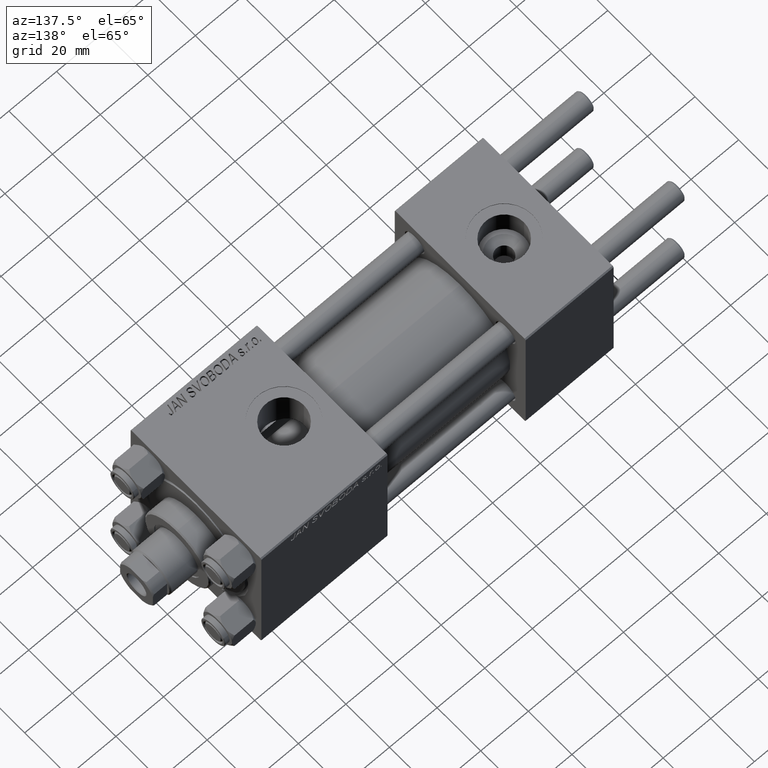
[diagram: clean part render]
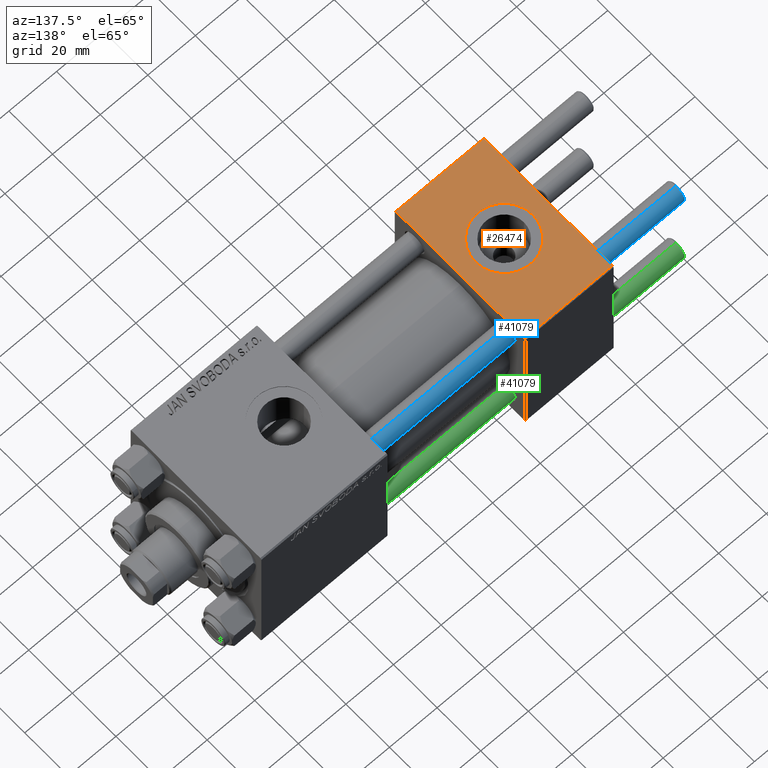
[diagram: same view with three faces highlighted in distinct colors, each labeled with its STEP entity id]
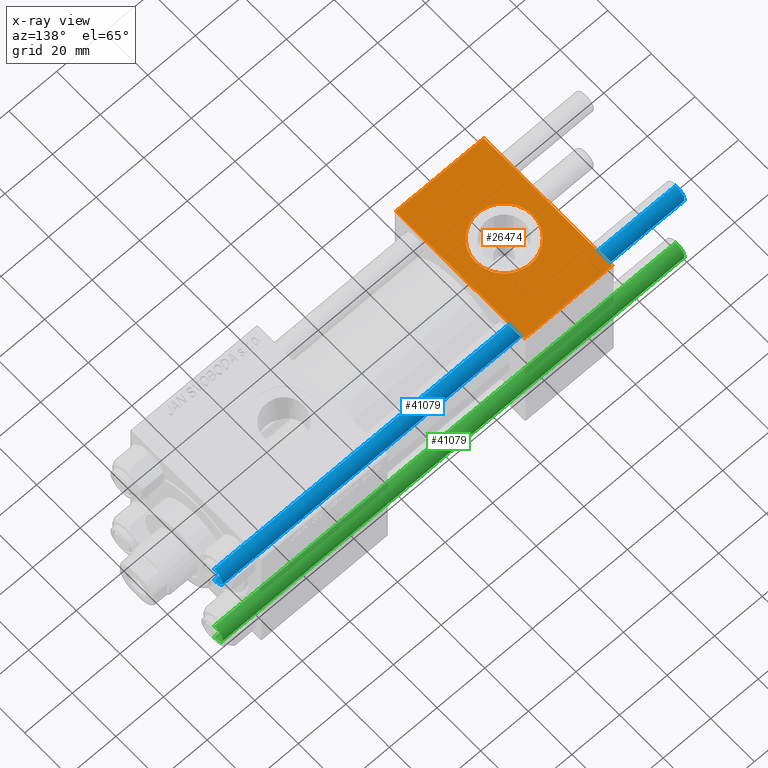
[diagram: x-ray of the same camera — body ghosted, the three highlighted faces saturated]
A machine part, auxiliary view with three faces highlighted in distinct colors.
The next image is the same camera in x-ray (body ghosted, the three faces saturated) — at least one of them is partly hidden behind the body in this view.
Their STEP definitions:

[orange] entity #26474 — the highlighted planar face has unit normal (0, 0, -1).
#276 = LINE ( 'NONE', #32312, #23030 ) ;
#476 = EDGE_CURVE ( 'NONE', #17168, #46126, #24790, .T. ) ;
#1478 = VECTOR ( 'NONE', #32930, 1000.000000000000000 ) ;
#3593 = CARTESIAN_POINT ( 'NONE',  ( 37.00000000000000000, 29.99999999999999289, 30.00000000000000000 ) ) ;
#4047 = CARTESIAN_POINT ( 'NONE',  ( 37.00000000000000000, -29.50000000000000000, 29.99999999999999289 ) ) ;
#4456 = CARTESIAN_POINT ( 'NONE',  ( 37.00000000000000000, -29.49999999999998579, 29.99999999999999289 ) ) ;
#5265 = DIRECTION ( 'NONE',  ( 0.000000000000000000, -1.000000000000000000, -1.156482317317871725E-16 ) ) ;
#5368 = ORIENTED_EDGE ( 'NONE', *, *, #5569, .T. ) ;
#5569 = EDGE_CURVE ( 'NONE', #9477, #17168, #20499, .T. ) ;
#5761 = AXIS2_PLACEMENT_3D ( 'NONE', #18982, #42617, #7659 ) ;
#6270 = DIRECTION ( 'NONE',  ( 0.000000000000000000, 0.000000000000000000, 1.000000000000000000 ) ) ;
#7659 = DIRECTION ( 'NONE',  ( 1.000000000000000000, 0.000000000000000000, 0.000000000000000000 ) ) ;
#9477 = VERTEX_POINT ( 'NONE', #27893 ) ;
#9820 = CARTESIAN_POINT ( 'NONE',  ( 0.000000000000000000, -29.49999999999998579, 29.99999999999999289 ) ) ;
#10709 = DIRECTION ( 'NONE',  ( 1.000000000000000000, 0.000000000000000000, 0.000000000000000000 ) ) ;
#11046 = DIRECTION ( 'NONE',  ( -1.000000000000000000, 0.000000000000000000, 0.000000000000000000 ) ) ;
#12144 = AXIS2_PLACEMENT_3D ( 'NONE', #50388, #6270, #10709 ) ;
#12442 = ORIENTED_EDGE ( 'NONE', *, *, #31432, .F. ) ;
#14670 = CIRCLE ( 'NONE', #12144, 12.00000000000000000 ) ;
#15404 = LINE ( 'NONE', #3593, #16581 ) ;
#16581 = VECTOR ( 'NONE', #35632, 1000.000000000000000 ) ;
#17168 = VERTEX_POINT ( 'NONE', #9820 ) ;
#18982 = CARTESIAN_POINT ( 'NONE',  ( 18.50000000000000000, -3.469446951953614978E-15, 29.99999999999999645 ) ) ;
#20499 = LINE ( 'NONE', #21020, #31793 ) ;
#21020 = CARTESIAN_POINT ( 'NONE',  ( 0.000000000000000000, 29.99999999999999289, 30.00000000000000000 ) ) ;
#21245 = EDGE_CURVE ( 'NONE', #50770, #9477, #276, .T. ) ;
#22269 = AXIS2_PLACEMENT_3D ( 'NONE', #23625, #40665, #40142 ) ;
#22624 = VERTEX_POINT ( 'NONE', #27448 ) ;
#22869 = EDGE_LOOP ( 'NONE', ( #5368, #45745, #40948, #47798 ) ) ;
#23030 = VECTOR ( 'NONE', #11046, 1000.000000000000000 ) ;
#23318 = VERTEX_POINT ( 'NONE', #24931 ) ;
#23337 = EDGE_LOOP ( 'NONE', ( #29047, #12442 ) ) ;
#23625 = CARTESIAN_POINT ( 'NONE',  ( 37.00000000000000000, 29.99999999999999289, 30.00000000000000000 ) ) ;
#24654 = FACE_OUTER_BOUND ( 'NONE', #22869, .T. ) ;
#24790 = LINE ( 'NONE', #4047, #1478 ) ;
#24931 = CARTESIAN_POINT ( 'NONE',  ( 6.499999999999997335, -1.999870792976790833E-15, 29.99999999999999645 ) ) ;
#26474 = ADVANCED_FACE ( 'NONE', ( #43845, #24654 ), #28090, .F. ) ;
#27448 = CARTESIAN_POINT ( 'NONE',  ( 30.50000000000000000, -3.469446951953614978E-15, 29.99999999999999645 ) ) ;
#27893 = CARTESIAN_POINT ( 'NONE',  ( 0.000000000000000000, 29.49999999999999289, 30.00000000000000000 ) ) ;
#28090 = PLANE ( 'NONE',  #22269 ) ;
#29047 = ORIENTED_EDGE ( 'NONE', *, *, #51116, .F. ) ;
#29955 = EDGE_CURVE ( 'NONE', #50770, #46126, #15404, .T. ) ;
#31432 = EDGE_CURVE ( 'NONE', #23318, #22624, #46858, .T. ) ;
#31793 = VECTOR ( 'NONE', #5265, 1000.000000000000000 ) ;
#32312 = CARTESIAN_POINT ( 'NONE',  ( 0.000000000000000000, 29.49999999999999289, 30.00000000000000000 ) ) ;
#32930 = DIRECTION ( 'NONE',  ( 1.000000000000000000, 0.000000000000000000, 0.000000000000000000 ) ) ;
#33921 = CARTESIAN_POINT ( 'NONE',  ( 37.00000000000000000, 29.49999999999999289, 30.00000000000000000 ) ) ;
#35632 = DIRECTION ( 'NONE',  ( 0.000000000000000000, -1.000000000000000000, -1.156482317317871725E-16 ) ) ;
#40142 = DIRECTION ( 'NONE',  ( 0.000000000000000000, 1.000000000000000000, 1.156482317317871725E-16 ) ) ;
#40665 = DIRECTION ( 'NONE',  ( 0.000000000000000000, 1.156482317317871725E-16, -1.000000000000000000 ) ) ;
#40948 = ORIENTED_EDGE ( 'NONE', *, *, #29955, .F. ) ;
#42617 = DIRECTION ( 'NONE',  ( 0.000000000000000000, 0.000000000000000000, 1.000000000000000000 ) ) ;
#43845 = FACE_BOUND ( 'NONE', #23337, .T. ) ;
#45745 = ORIENTED_EDGE ( 'NONE', *, *, #476, .T. ) ;
#46126 = VERTEX_POINT ( 'NONE', #4456 ) ;
#46858 = CIRCLE ( 'NONE', #5761, 12.00000000000000000 ) ;
#47798 = ORIENTED_EDGE ( 'NONE', *, *, #21245, .T. ) ;
#50388 = CARTESIAN_POINT ( 'NONE',  ( 18.50000000000000000, -3.469446951953614978E-15, 29.99999999999999645 ) ) ;
#50770 = VERTEX_POINT ( 'NONE', #33921 ) ;
#51116 = EDGE_CURVE ( 'NONE', #22624, #23318, #14670, .T. ) ;

[blue] entity #41079 — the highlighted cylindrical surface (edge-blend (fillet) strip) has radius 4 mm, axis along (-1, -0, -0).
#2330 = EDGE_CURVE ( 'NONE', #30968, #37927, #7077, .T. ) ;
#4090 = CARTESIAN_POINT ( 'NONE',  ( -4.000000000000000000, 0.000000000000000000, 0.5000000000000004441 ) ) ;
#4547 = AXIS2_PLACEMENT_3D ( 'NONE', #50156, #29168, #17598 ) ;
#5551 = FACE_OUTER_BOUND ( 'NONE', #10273, .T. ) ;
#5588 = LINE ( 'NONE', #37374, #13469 ) ;
#6254 = CARTESIAN_POINT ( 'NONE',  ( 4.000000000000000000, 4.898587196589412829E-16, 0.5000000000000004441 ) ) ;
#6565 = DIRECTION ( 'NONE',  ( -0.000000000000000000, -0.000000000000000000, -1.000000000000000000 ) ) ;
#7077 = LINE ( 'NONE', #34935, #12389 ) ;
#10273 = EDGE_LOOP ( 'NONE', ( #46531, #27031, #31915, #34953 ) ) ;
#10541 = DIRECTION ( 'NONE',  ( 1.000000000000000000, 0.000000000000000000, 0.000000000000000000 ) ) ;
#12389 = VECTOR ( 'NONE', #6565, 1000.000000000000000 ) ;
#13469 = VECTOR ( 'NONE', #29232, 1000.000000000000000 ) ;
#13681 = DIRECTION ( 'NONE',  ( -1.000000000000000000, 0.000000000000000000, 0.000000000000000000 ) ) ;
#14226 = DIRECTION ( 'NONE',  ( -0.000000000000000000, -0.000000000000000000, 1.000000000000000000 ) ) ;
#17598 = DIRECTION ( 'NONE',  ( 1.000000000000000000, 0.000000000000000000, 0.000000000000000000 ) ) ;
#26353 = CIRCLE ( 'NONE', #4547, 4.000000000000000000 ) ;
#26589 = CARTESIAN_POINT ( 'NONE',  ( 0.000000000000000000, 0.000000000000000000, 0.5000000000000004441 ) ) ;
#27031 = ORIENTED_EDGE ( 'NONE', *, *, #2330, .T. ) ;
#29168 = DIRECTION ( 'NONE',  ( 0.000000000000000000, 0.000000000000000000, -1.000000000000000000 ) ) ;
#29232 = DIRECTION ( 'NONE',  ( -0.000000000000000000, -0.000000000000000000, -1.000000000000000000 ) ) ;
#29531 = AXIS2_PLACEMENT_3D ( 'NONE', #26589, #14226, #10541 ) ;
#29576 = AXIS2_PLACEMENT_3D ( 'NONE', #33656, #49672, #13681 ) ;
#30968 = VERTEX_POINT ( 'NONE', #49272 ) ;
#31915 = ORIENTED_EDGE ( 'NONE', *, *, #42347, .T. ) ;
#33656 = CARTESIAN_POINT ( 'NONE',  ( 0.000000000000000000, 0.000000000000000000, 195.0000000000000000 ) ) ;
#34935 = CARTESIAN_POINT ( 'NONE',  ( 4.000000000000000000, 4.898587196589412829E-16, 195.0000000000000000 ) ) ;
#34953 = ORIENTED_EDGE ( 'NONE', *, *, #36403, .F. ) ;
#36403 = EDGE_CURVE ( 'NONE', #44736, #40772, #5588, .T. ) ;
#37374 = CARTESIAN_POINT ( 'NONE',  ( -4.000000000000000000, 0.000000000000000000, 195.0000000000000000 ) ) ;
#37589 = CYLINDRICAL_SURFACE ( 'NONE', #29576, 4.000000000000000000 ) ;
#37927 = VERTEX_POINT ( 'NONE', #6254 ) ;
#38754 = CIRCLE ( 'NONE', #29531, 4.000000000000000000 ) ;
#40772 = VERTEX_POINT ( 'NONE', #4090 ) ;
#41079 = ADVANCED_FACE ( 'NONE', ( #5551 ), #37589, .T. ) ;
#42347 = EDGE_CURVE ( 'NONE', #37927, #40772, #38754, .T. ) ;
#44736 = VERTEX_POINT ( 'NONE', #48701 ) ;
#46531 = ORIENTED_EDGE ( 'NONE', *, *, #48737, .T. ) ;
#48701 = CARTESIAN_POINT ( 'NONE',  ( -4.000000000000000000, 0.000000000000000000, 194.5000000000000568 ) ) ;
#48737 = EDGE_CURVE ( 'NONE', #44736, #30968, #26353, .T. ) ;
#49272 = CARTESIAN_POINT ( 'NONE',  ( 4.000000000000000000, 4.898587196589412829E-16, 194.5000000000000568 ) ) ;
#49672 = DIRECTION ( 'NONE',  ( -0.000000000000000000, -0.000000000000000000, -1.000000000000000000 ) ) ;
#50156 = CARTESIAN_POINT ( 'NONE',  ( 0.000000000000000000, 0.000000000000000000, 194.5000000000000568 ) ) ;

[green] entity #41079 — the highlighted cylindrical surface (edge-blend (fillet) strip) has radius 4 mm, axis along (1, 0, -0).
#2330 = EDGE_CURVE ( 'NONE', #30968, #37927, #7077, .T. ) ;
#4090 = CARTESIAN_POINT ( 'NONE',  ( -4.000000000000000000, 0.000000000000000000, 0.5000000000000004441 ) ) ;
#4547 = AXIS2_PLACEMENT_3D ( 'NONE', #50156, #29168, #17598 ) ;
#5551 = FACE_OUTER_BOUND ( 'NONE', #10273, .T. ) ;
#5588 = LINE ( 'NONE', #37374, #13469 ) ;
#6254 = CARTESIAN_POINT ( 'NONE',  ( 4.000000000000000000, 4.898587196589412829E-16, 0.5000000000000004441 ) ) ;
#6565 = DIRECTION ( 'NONE',  ( -0.000000000000000000, -0.000000000000000000, -1.000000000000000000 ) ) ;
#7077 = LINE ( 'NONE', #34935, #12389 ) ;
#10273 = EDGE_LOOP ( 'NONE', ( #46531, #27031, #31915, #34953 ) ) ;
#10541 = DIRECTION ( 'NONE',  ( 1.000000000000000000, 0.000000000000000000, 0.000000000000000000 ) ) ;
#12389 = VECTOR ( 'NONE', #6565, 1000.000000000000000 ) ;
#13469 = VECTOR ( 'NONE', #29232, 1000.000000000000000 ) ;
#13681 = DIRECTION ( 'NONE',  ( -1.000000000000000000, 0.000000000000000000, 0.000000000000000000 ) ) ;
#14226 = DIRECTION ( 'NONE',  ( -0.000000000000000000, -0.000000000000000000, 1.000000000000000000 ) ) ;
#17598 = DIRECTION ( 'NONE',  ( 1.000000000000000000, 0.000000000000000000, 0.000000000000000000 ) ) ;
#26353 = CIRCLE ( 'NONE', #4547, 4.000000000000000000 ) ;
#26589 = CARTESIAN_POINT ( 'NONE',  ( 0.000000000000000000, 0.000000000000000000, 0.5000000000000004441 ) ) ;
#27031 = ORIENTED_EDGE ( 'NONE', *, *, #2330, .T. ) ;
#29168 = DIRECTION ( 'NONE',  ( 0.000000000000000000, 0.000000000000000000, -1.000000000000000000 ) ) ;
#29232 = DIRECTION ( 'NONE',  ( -0.000000000000000000, -0.000000000000000000, -1.000000000000000000 ) ) ;
#29531 = AXIS2_PLACEMENT_3D ( 'NONE', #26589, #14226, #10541 ) ;
#29576 = AXIS2_PLACEMENT_3D ( 'NONE', #33656, #49672, #13681 ) ;
#30968 = VERTEX_POINT ( 'NONE', #49272 ) ;
#31915 = ORIENTED_EDGE ( 'NONE', *, *, #42347, .T. ) ;
#33656 = CARTESIAN_POINT ( 'NONE',  ( 0.000000000000000000, 0.000000000000000000, 195.0000000000000000 ) ) ;
#34935 = CARTESIAN_POINT ( 'NONE',  ( 4.000000000000000000, 4.898587196589412829E-16, 195.0000000000000000 ) ) ;
#34953 = ORIENTED_EDGE ( 'NONE', *, *, #36403, .F. ) ;
#36403 = EDGE_CURVE ( 'NONE', #44736, #40772, #5588, .T. ) ;
#37374 = CARTESIAN_POINT ( 'NONE',  ( -4.000000000000000000, 0.000000000000000000, 195.0000000000000000 ) ) ;
#37589 = CYLINDRICAL_SURFACE ( 'NONE', #29576, 4.000000000000000000 ) ;
#37927 = VERTEX_POINT ( 'NONE', #6254 ) ;
#38754 = CIRCLE ( 'NONE', #29531, 4.000000000000000000 ) ;
#40772 = VERTEX_POINT ( 'NONE', #4090 ) ;
#41079 = ADVANCED_FACE ( 'NONE', ( #5551 ), #37589, .T. ) ;
#42347 = EDGE_CURVE ( 'NONE', #37927, #40772, #38754, .T. ) ;
#44736 = VERTEX_POINT ( 'NONE', #48701 ) ;
#46531 = ORIENTED_EDGE ( 'NONE', *, *, #48737, .T. ) ;
#48701 = CARTESIAN_POINT ( 'NONE',  ( -4.000000000000000000, 0.000000000000000000, 194.5000000000000568 ) ) ;
#48737 = EDGE_CURVE ( 'NONE', #44736, #30968, #26353, .T. ) ;
#49272 = CARTESIAN_POINT ( 'NONE',  ( 4.000000000000000000, 4.898587196589412829E-16, 194.5000000000000568 ) ) ;
#49672 = DIRECTION ( 'NONE',  ( -0.000000000000000000, -0.000000000000000000, -1.000000000000000000 ) ) ;
#50156 = CARTESIAN_POINT ( 'NONE',  ( 0.000000000000000000, 0.000000000000000000, 194.5000000000000568 ) ) ;